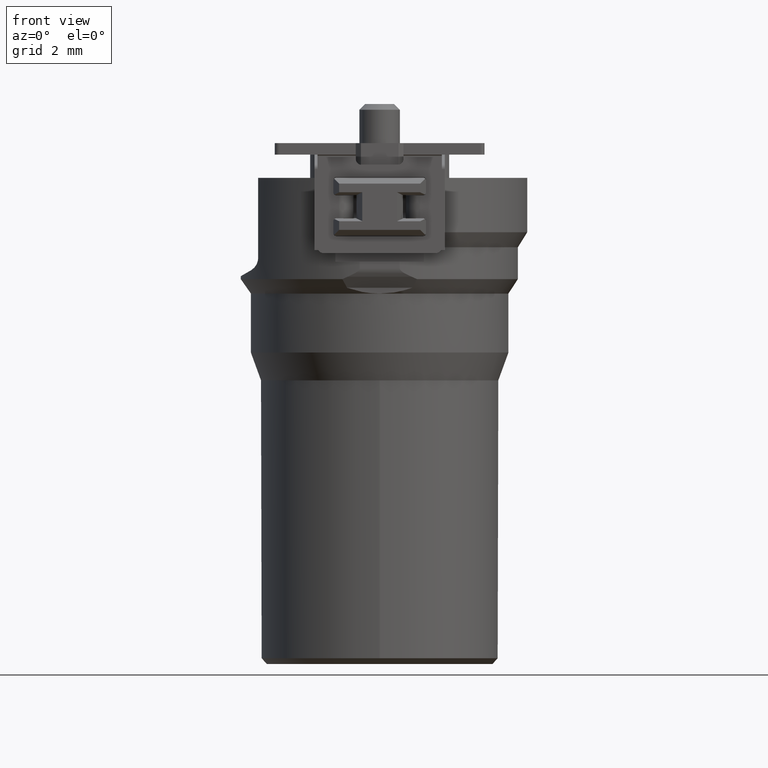
[diagram: clean part render]
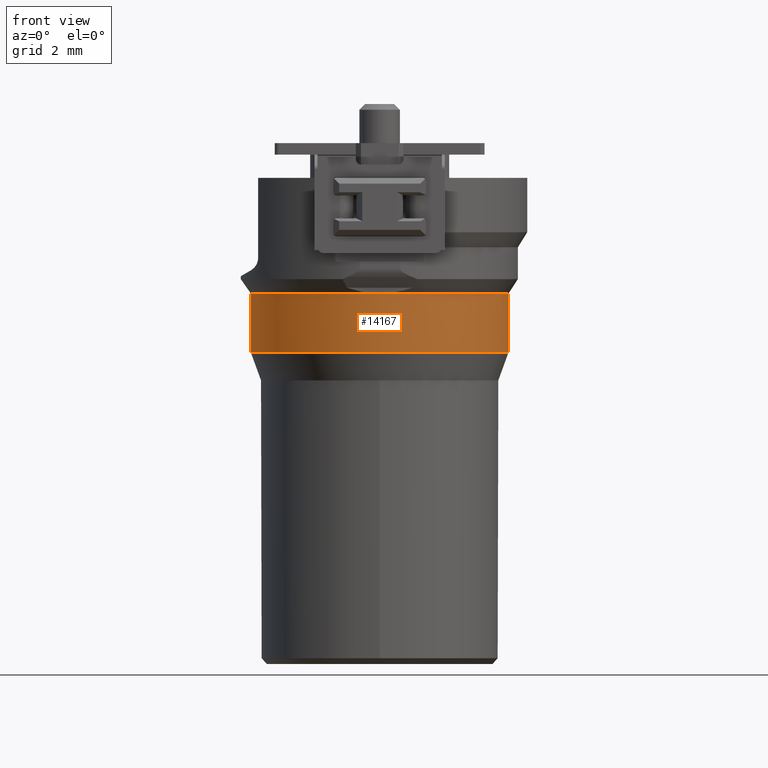
[diagram: same view with one face highlighted and labeled with its STEP entity id]
A machine part, front view. The second image highlights one B-rep face of the part: STEP entity #14167.
In plain terms, the highlighted cylindrical surface (partial cylindrical patch) has radius 4.45 mm, axis along (0, 0, 1).
Its self-contained STEP definition (entity closure, byte-faithful):
#2548=CARTESIAN_POINT('',(0.E0,0.E0,-5.2E0));
#2549=DIRECTION('',(0.E0,0.E0,1.E0));
#2550=DIRECTION('',(-1.E0,0.E0,0.E0));
#2551=AXIS2_PLACEMENT_3D('',#2548,#2549,#2550);
#4447=CARTESIAN_POINT('',(0.E0,0.E0,-5.2E0));
#4448=DIRECTION('',(0.E0,0.E0,1.E0));
#4449=DIRECTION('',(0.E0,-1.E0,0.E0));
#4450=AXIS2_PLACEMENT_3D('',#4447,#4448,#4449);
#4485=DIRECTION('',(0.E0,0.E0,-1.E0));
#4486=VECTOR('',#4485,2.038382903191E0);
#4487=CARTESIAN_POINT('',(4.45E0,0.E0,-5.2E0));
#4488=LINE('',#4487,#4486);
#4489=DIRECTION('',(0.E0,0.E0,-1.E0));
#4490=VECTOR('',#4489,2.038382903191E0);
#4491=CARTESIAN_POINT('',(-4.45E0,0.E0,-5.2E0));
#4492=LINE('',#4491,#4490);
#4497=CARTESIAN_POINT('',(0.E0,0.E0,-7.238382903191E0));
#4498=DIRECTION('',(0.E0,0.E0,-1.E0));
#4499=DIRECTION('',(1.E0,0.E0,0.E0));
#4500=AXIS2_PLACEMENT_3D('',#4497,#4498,#4499);
#6552=CARTESIAN_POINT('',(4.45E0,0.E0,-7.238382903191E0));
#6553=CARTESIAN_POINT('',(-4.45E0,0.E0,-7.238382903191E0));
#6554=VERTEX_POINT('',#6552);
#6555=VERTEX_POINT('',#6553);
#6564=CARTESIAN_POINT('',(4.45E0,0.E0,-5.2E0));
#6565=VERTEX_POINT('',#6564);
#6566=CARTESIAN_POINT('',(-4.45E0,0.E0,-5.2E0));
#6567=VERTEX_POINT('',#6566);
#6794=CARTESIAN_POINT('',(0.E0,-4.45E0,-5.2E0));
#6795=VERTEX_POINT('',#6794);
#14154=CARTESIAN_POINT('',(0.E0,0.E0,-8.425E0));
#14155=DIRECTION('',(0.E0,0.E0,1.E0));
#14156=DIRECTION('',(-1.E0,0.E0,0.E0));
#14157=AXIS2_PLACEMENT_3D('',#14154,#14155,#14156);
#14158=CYLINDRICAL_SURFACE('',#14157,4.45E0);
#14159=ORIENTED_EDGE('',*,*,#11543,.T.);
#14160=ORIENTED_EDGE('',*,*,#14126,.T.);
#14161=ORIENTED_EDGE('',*,*,#14149,.T.);
#14163=ORIENTED_EDGE('',*,*,#14162,.T.);
#14164=ORIENTED_EDGE('',*,*,#14145,.F.);
#14165=EDGE_LOOP('',(#14159,#14160,#14161,#14163,#14164));
#14166=FACE_OUTER_BOUND('',#14165,.F.);
#2552=CIRCLE('',#2551,4.45E0);
#4451=CIRCLE('',#4450,4.45E0);
#4501=CIRCLE('',#4500,4.45E0);
#11543=EDGE_CURVE('',#6567,#6795,#2552,.T.);
#14126=EDGE_CURVE('',#6795,#6565,#4451,.T.);
#14145=EDGE_CURVE('',#6567,#6555,#4492,.T.);
#14149=EDGE_CURVE('',#6565,#6554,#4488,.T.);
#14162=EDGE_CURVE('',#6554,#6555,#4501,.T.);
#14167=ADVANCED_FACE('',(#14166),#14158,.T.);